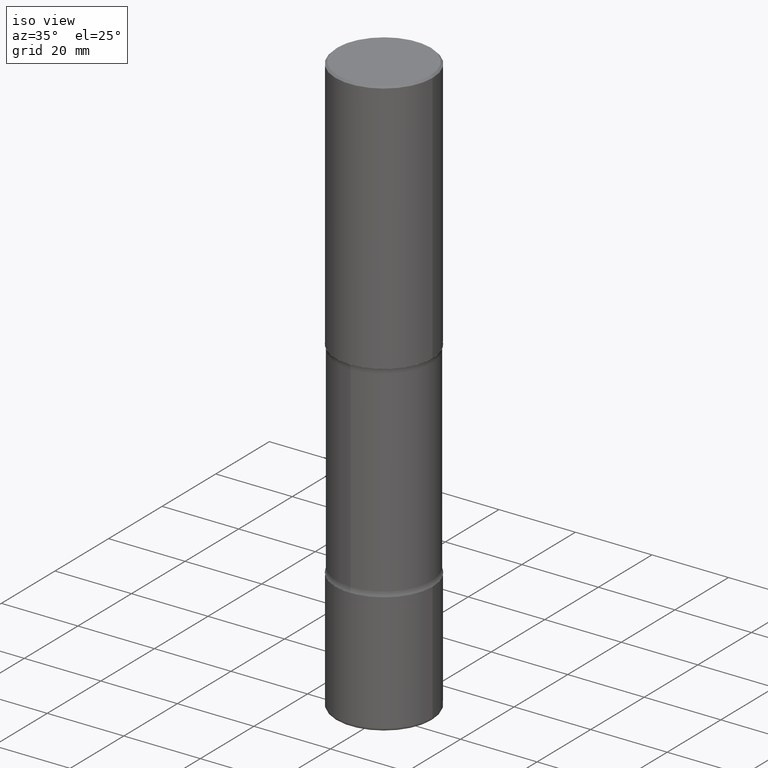
[diagram: clean part render]
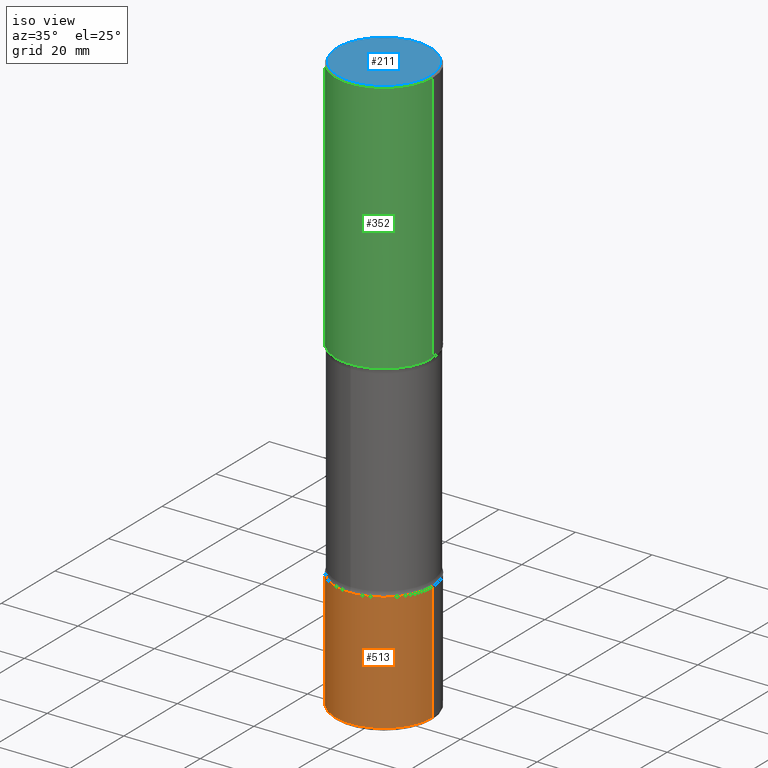
[diagram: same view with three faces highlighted in distinct colors, each labeled with its STEP entity id]
A machine part, iso view with three faces highlighted in distinct colors.
Their STEP definitions:

[orange] entity #513 — the highlighted cylindrical surface (partial cylindrical patch) has radius 12.7 mm, axis along (-0, 0, 1).
#11 = CARTESIAN_POINT ( 'NONE',  ( 0.000000000000000000, 0.000000000000000000, 0.000000000000000000 ) ) ;
#13 = ORIENTED_EDGE ( 'NONE', *, *, #210, .T. ) ;
#44 = CARTESIAN_POINT ( 'NONE',  ( 1.459944877292526494E-28, -2.084414359289357934E-14, -5.969999999999999751 ) ) ;
#54 = CARTESIAN_POINT ( 'NONE',  ( 0.5000000000000006661, -2.007601769834807990E-14, -4.750000000000000000 ) ) ;
#62 = EDGE_CURVE ( 'NONE', #344, #440, #208, .T. ) ;
#78 = LINE ( 'NONE', #472, #295 ) ;
#100 = VERTEX_POINT ( 'NONE', #267 ) ;
#136 = VERTEX_POINT ( 'NONE', #54 ) ;
#138 = DIRECTION ( 'NONE',  ( 1.000000000000000000, -6.982962677686265133E-15, 0.000000000000000000 ) ) ;
#158 = CARTESIAN_POINT ( 'NONE',  ( 1.161597682937940108E-28, -1.658453635950494339E-14, -4.750000000000000000 ) ) ;
#187 = FACE_OUTER_BOUND ( 'NONE', #405, .T. ) ;
#192 = VECTOR ( 'NONE', #236, 39.37007874015748143 ) ;
#208 = CIRCLE ( 'NONE', #348, 0.5000000000000006661 ) ;
#210 = EDGE_CURVE ( 'NONE', #440, #136, #78, .T. ) ;
#236 = DIRECTION ( 'NONE',  ( -2.445468806185136877E-29, 3.491481338843145188E-15, 1.000000000000000000 ) ) ;
#249 = DIRECTION ( 'NONE',  ( -2.445468806185136877E-29, 3.491481338843145188E-15, 1.000000000000000000 ) ) ;
#267 = CARTESIAN_POINT ( 'NONE',  ( -0.5000000000000006661, -1.516162629739875255E-14, -4.750000000000000000 ) ) ;
#295 = VECTOR ( 'NONE', #249, 39.37007874015748143 ) ;
#297 = CIRCLE ( 'NONE', #446, 0.5000000000000006661 ) ;
#301 = ORIENTED_EDGE ( 'NONE', *, *, #337, .F. ) ;
#310 = DIRECTION ( 'NONE',  ( -2.445468806185136597E-29, 3.491481338843145583E-15, 1.000000000000000000 ) ) ;
#311 = ORIENTED_EDGE ( 'NONE', *, *, #62, .T. ) ;
#320 = DIRECTION ( 'NONE',  ( -2.445468806185136597E-29, 3.491481338843145583E-15, 1.000000000000000000 ) ) ;
#327 = CYLINDRICAL_SURFACE ( 'NONE', #515, 0.5000000000000006661 ) ;
#330 = CARTESIAN_POINT ( 'NONE',  ( -0.5000000000000006661, 3.552713678800505663E-15, -2.459467545127455974E-29 ) ) ;
#337 = EDGE_CURVE ( 'NONE', #344, #100, #374, .T. ) ;
#344 = VERTEX_POINT ( 'NONE', #366 ) ;
#348 = AXIS2_PLACEMENT_3D ( 'NONE', #44, #310, #400 ) ;
#366 = CARTESIAN_POINT ( 'NONE',  ( -0.5000000000000007772, -1.729142991409307210E-14, -5.969999999999999751 ) ) ;
#374 = LINE ( 'NONE', #330, #192 ) ;
#394 = ORIENTED_EDGE ( 'NONE', *, *, #474, .F. ) ;
#400 = DIRECTION ( 'NONE',  ( 1.000000000000000000, -6.982962677686269077E-15, 0.000000000000000000 ) ) ;
#405 = EDGE_LOOP ( 'NONE', ( #301, #311, #13, #394 ) ) ;
#414 = CARTESIAN_POINT ( 'NONE',  ( 0.5000000000000007772, -2.433562493173672216E-14, -5.969999999999999751 ) ) ;
#416 = DIRECTION ( 'NONE',  ( -2.445468806185136597E-29, 3.491481338843145583E-15, 1.000000000000000000 ) ) ;
#440 = VERTEX_POINT ( 'NONE', #414 ) ;
#446 = AXIS2_PLACEMENT_3D ( 'NONE', #158, #416, #138 ) ;
#472 = CARTESIAN_POINT ( 'NONE',  ( 0.5000000000000006661, -3.491481338843138088E-15, 2.438088387897971260E-29 ) ) ;
#474 = EDGE_CURVE ( 'NONE', #100, #136, #297, .T. ) ;
#488 = DIRECTION ( 'NONE',  ( 1.000000000000000000, -6.982962677686266711E-15, 4.876176775795935793E-29 ) ) ;
#513 = ADVANCED_FACE ( 'NONE', ( #187 ), #327, .T. ) ;
#515 = AXIS2_PLACEMENT_3D ( 'NONE', #11, #320, #488 ) ;

[blue] entity #211 — the highlighted planar face has unit normal (0, -0, -1).
#41 = CIRCLE ( 'NONE', #533, 0.4800000000000005929 ) ;
#50 = ORIENTED_EDGE ( 'NONE', *, *, #409, .T. ) ;
#56 = CARTESIAN_POINT ( 'NONE',  ( 0.4800000000000005929, -3.396558832296486043E-15, 1.280553747032483033E-17 ) ) ;
#67 = DIRECTION ( 'NONE',  ( -2.445468806185136597E-29, 3.491481338843145583E-15, 1.000000000000000000 ) ) ;
#82 = DIRECTION ( 'NONE',  ( -1.000000000000000000, 6.982962677686265922E-15, -4.876176775795935793E-29 ) ) ;
#119 = FACE_OUTER_BOUND ( 'NONE', #477, .T. ) ;
#122 = ORIENTED_EDGE ( 'NONE', *, *, #294, .T. ) ;
#128 = CARTESIAN_POINT ( 'NONE',  ( 3.351822085289412281E-15, 0.4800000000000005929, -1.669508273909561417E-15 ) ) ;
#170 = DIRECTION ( 'NONE',  ( 2.438088387897960049E-29, -3.491481338843145188E-15, -1.000000000000000000 ) ) ;
#182 = VERTEX_POINT ( 'NONE', #379 ) ;
#200 = AXIS2_PLACEMENT_3D ( 'NONE', #128, #170, #82 ) ;
#211 = ADVANCED_FACE ( 'NONE', ( #119 ), #298, .F. ) ;
#277 = CARTESIAN_POINT ( 'NONE',  ( -3.131554243005659264E-46, 4.471029511141341874E-32, 1.280553747030123384E-17 ) ) ;
#294 = EDGE_CURVE ( 'NONE', #526, #182, #514, .T. ) ;
#298 = PLANE ( 'NONE',  #200 ) ;
#332 = DIRECTION ( 'NONE',  ( -2.445468806185136597E-29, 3.491481338843145583E-15, 1.000000000000000000 ) ) ;
#379 = CARTESIAN_POINT ( 'NONE',  ( -0.4800000000000005929, 3.386736898677843141E-15, 1.280553747027767124E-17 ) ) ;
#409 = EDGE_CURVE ( 'NONE', #182, #526, #41, .T. ) ;
#413 = CARTESIAN_POINT ( 'NONE',  ( -3.131554243005659264E-46, 4.471029511141341874E-32, 1.280553747030123384E-17 ) ) ;
#477 = EDGE_LOOP ( 'NONE', ( #50, #122 ) ) ;
#486 = AXIS2_PLACEMENT_3D ( 'NONE', #413, #332, #496 ) ;
#496 = DIRECTION ( 'NONE',  ( 1.000000000000000000, -6.982962677686266711E-15, 4.876036955247123238E-29 ) ) ;
#514 = CIRCLE ( 'NONE', #486, 0.4800000000000005929 ) ;
#526 = VERTEX_POINT ( 'NONE', #56 ) ;
#533 = AXIS2_PLACEMENT_3D ( 'NONE', #277, #67, #547 ) ;
#547 = DIRECTION ( 'NONE',  ( 1.000000000000000000, -6.982962677686266711E-15, 4.876036955247123238E-29 ) ) ;

[green] entity #352 — the highlighted cylindrical surface (partial cylindrical patch) has radius 12.7 mm, axis along (-0, 0, 1).
#3 = ORIENTED_EDGE ( 'NONE', *, *, #385, .T. ) ;
#7 = CIRCLE ( 'NONE', #422, 0.5000000000000007772 ) ;
#10 = CARTESIAN_POINT ( 'NONE',  ( -0.5000000000000006661, 3.552713678800505663E-15, -2.459467545127455974E-29 ) ) ;
#17 = AXIS2_PLACEMENT_3D ( 'NONE', #113, #417, #99 ) ;
#20 = CARTESIAN_POINT ( 'NONE',  ( -0.5000000000000005551, 3.421651712066274396E-15, -0.02000000000000000042 ) ) ;
#40 = AXIS2_PLACEMENT_3D ( 'NONE', #60, #462, #106 ) ;
#43 = EDGE_LOOP ( 'NONE', ( #133, #324, #3, #174 ) ) ;
#60 = CARTESIAN_POINT ( 'NONE',  ( 4.890937612370273159E-31, -6.982962677686291609E-17, -0.02000000000000000042 ) ) ;
#65 = DIRECTION ( 'NONE',  ( -2.445468806185136877E-29, 3.491481338843145188E-15, 1.000000000000000000 ) ) ;
#73 = VECTOR ( 'NONE', #328, 39.37007874015748143 ) ;
#99 = DIRECTION ( 'NONE',  ( 1.000000000000000000, -6.982962677686266711E-15, 4.876176775795935793E-29 ) ) ;
#106 = DIRECTION ( 'NONE',  ( 1.000000000000000000, -6.982962677686266711E-15, 0.000000000000000000 ) ) ;
#113 = CARTESIAN_POINT ( 'NONE',  ( 0.000000000000000000, 0.000000000000000000, 0.000000000000000000 ) ) ;
#133 = ORIENTED_EDGE ( 'NONE', *, *, #145, .F. ) ;
#145 = EDGE_CURVE ( 'NONE', #482, #442, #190, .T. ) ;
#147 = LINE ( 'NONE', #231, #73 ) ;
#174 = ORIENTED_EDGE ( 'NONE', *, *, #268, .F. ) ;
#178 = VERTEX_POINT ( 'NONE', #420 ) ;
#190 = LINE ( 'NONE', #10, #313 ) ;
#224 = EDGE_CURVE ( 'NONE', #482, #178, #7, .T. ) ;
#231 = CARTESIAN_POINT ( 'NONE',  ( 0.5000000000000006661, -3.491481338843138088E-15, 2.438088387897971260E-29 ) ) ;
#237 = FACE_OUTER_BOUND ( 'NONE', #43, .T. ) ;
#255 = CARTESIAN_POINT ( 'NONE',  ( 6.419355616235984688E-29, -9.165138514463258190E-15, -2.625000000000000444 ) ) ;
#268 = EDGE_CURVE ( 'NONE', #442, #402, #377, .T. ) ;
#308 = DIRECTION ( 'NONE',  ( -2.445468806185136597E-29, 3.491481338843145583E-15, 1.000000000000000000 ) ) ;
#313 = VECTOR ( 'NONE', #65, 39.37007874015748143 ) ;
#324 = ORIENTED_EDGE ( 'NONE', *, *, #224, .T. ) ;
#328 = DIRECTION ( 'NONE',  ( -2.445468806185136877E-29, 3.491481338843145188E-15, 1.000000000000000000 ) ) ;
#352 = ADVANCED_FACE ( 'NONE', ( #237 ), #370, .T. ) ;
#370 = CYLINDRICAL_SURFACE ( 'NONE', #17, 0.5000000000000006661 ) ;
#377 = CIRCLE ( 'NONE', #40, 0.5000000000000005551 ) ;
#385 = EDGE_CURVE ( 'NONE', #178, #402, #147, .T. ) ;
#402 = VERTEX_POINT ( 'NONE', #463 ) ;
#417 = DIRECTION ( 'NONE',  ( -2.445468806185136597E-29, 3.491481338843145583E-15, 1.000000000000000000 ) ) ;
#420 = CARTESIAN_POINT ( 'NONE',  ( 0.5000000000000007772, -1.265661985330639786E-14, -2.625000000000000444 ) ) ;
#422 = AXIS2_PLACEMENT_3D ( 'NONE', #255, #308, #476 ) ;
#442 = VERTEX_POINT ( 'NONE', #20 ) ;
#462 = DIRECTION ( 'NONE',  ( -2.445468806185136597E-29, 3.491481338843145583E-15, 1.000000000000000000 ) ) ;
#463 = CARTESIAN_POINT ( 'NONE',  ( 0.5000000000000005551, -3.500078625662632235E-15, -0.02000000000000000042 ) ) ;
#476 = DIRECTION ( 'NONE',  ( 1.000000000000000000, -6.982962677686267499E-15, 0.000000000000000000 ) ) ;
#481 = CARTESIAN_POINT ( 'NONE',  ( -0.5000000000000007772, -1.064770391819553504E-15, -2.625000000000000444 ) ) ;
#482 = VERTEX_POINT ( 'NONE', #481 ) ;